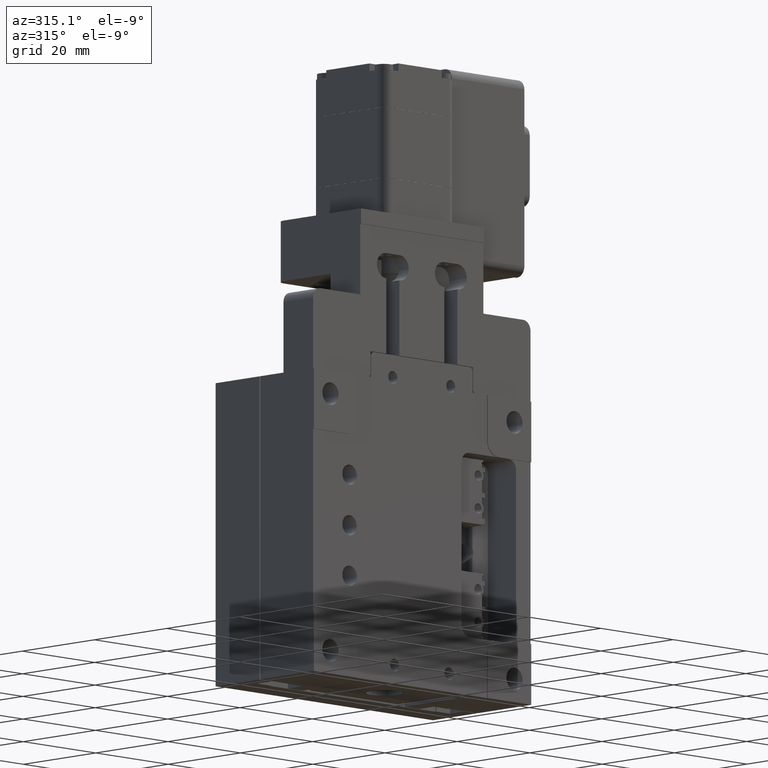
[diagram: clean part render]
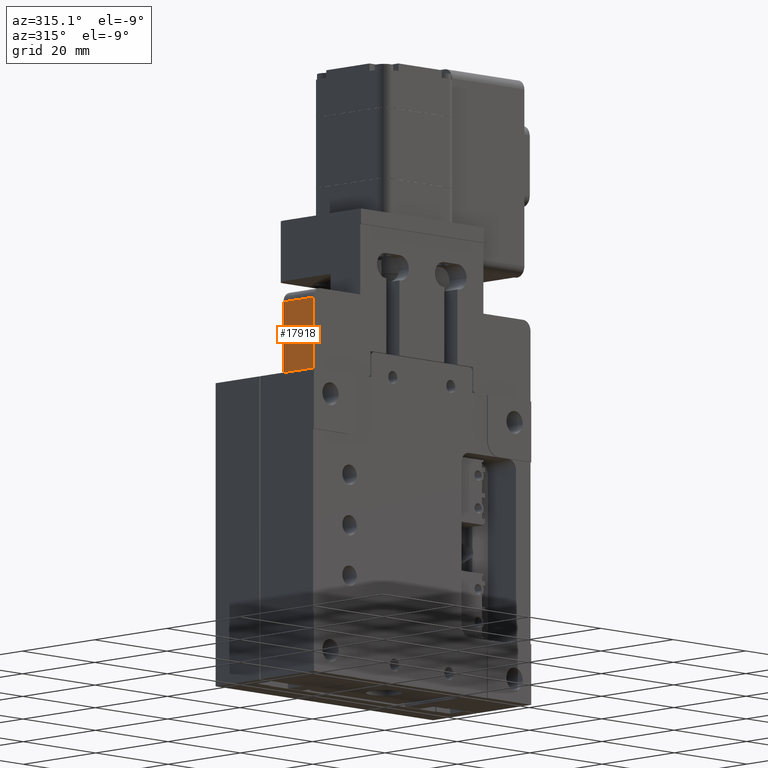
[diagram: same view with one face highlighted and labeled with its STEP entity id]
A machine part, auxiliary view. The second image highlights one B-rep face of the part: STEP entity #17918.
In plain terms, the highlighted planar face has unit normal (-1, 0, 0).
Its self-contained STEP definition (entity closure, byte-faithful):
#521 = CARTESIAN_POINT ( 'NONE',  ( -32.59171959880752200, -12.89818754598601900, 92.50000000000000000 ) ) ;
#1343 = VECTOR ( 'NONE', #5810, 1000.000000000000000 ) ;
#2170 = EDGE_CURVE ( 'NONE', #22150, #16474, #5634, .T. ) ;
#2409 = CARTESIAN_POINT ( 'NONE',  ( -32.59171959880752200, -4.698187545986018100, 92.50000000000000000 ) ) ;
#2565 = DIRECTION ( 'NONE',  ( 0.0000000000000000000, 0.0000000000000000000, 1.000000000000000000 ) ) ;
#2603 = AXIS2_PLACEMENT_3D ( 'NONE', #2409, #19979, #2565 ) ;
#3171 = DIRECTION ( 'NONE',  ( -0.0000000000000000000, 1.000000000000000000, -0.0000000000000000000 ) ) ;
#3338 = CARTESIAN_POINT ( 'NONE',  ( -32.59171959880752200, -4.698187545986018100, 106.5000000000000100 ) ) ;
#4384 = LINE ( 'NONE', #21349, #1343 ) ;
#4859 = CARTESIAN_POINT ( 'NONE',  ( -32.59171959880752200, -4.698187545986018100, 92.50000000000000000 ) ) ;
#5541 = DIRECTION ( 'NONE',  ( 0.0000000000000000000, 0.0000000000000000000, 1.000000000000000000 ) ) ;
#5634 = LINE ( 'NONE', #521, #22520 ) ;
#5749 = ORIENTED_EDGE ( 'NONE', *, *, #20749, .F. ) ;
#5810 = DIRECTION ( 'NONE',  ( 0.0000000000000000000, 0.0000000000000000000, 1.000000000000000000 ) ) ;
#6000 = DIRECTION ( 'NONE',  ( 0.0000000000000000000, -1.000000000000000000, 0.0000000000000000000 ) ) ;
#7834 = VECTOR ( 'NONE', #3171, 1000.000000000000000 ) ;
#8435 = EDGE_CURVE ( 'NONE', #16474, #16302, #10589, .T. ) ;
#8888 = LINE ( 'NONE', #16448, #20806 ) ;
#9498 = PLANE ( 'NONE',  #2603 ) ;
#10589 = LINE ( 'NONE', #12049, #7834 ) ;
#12049 = CARTESIAN_POINT ( 'NONE',  ( -32.59171959880752200, -4.698187545986018100, 106.5000000000000100 ) ) ;
#12579 = ORIENTED_EDGE ( 'NONE', *, *, #8435, .T. ) ;
#14326 = ORIENTED_EDGE ( 'NONE', *, *, #18449, .T. ) ;
#16302 = VERTEX_POINT ( 'NONE', #3338 ) ;
#16448 = CARTESIAN_POINT ( 'NONE',  ( -32.59171959880752200, -4.698187545986018100, 92.50000000000000000 ) ) ;
#16474 = VERTEX_POINT ( 'NONE', #21986 ) ;
#16934 = FACE_OUTER_BOUND ( 'NONE', #21853, .T. ) ;
#17918 = ADVANCED_FACE ( 'NONE', ( #16934 ), #9498, .T. ) ;
#18449 = EDGE_CURVE ( 'NONE', #21849, #22150, #8888, .T. ) ;
#19979 = DIRECTION ( 'NONE',  ( -1.000000000000000000, 0.0000000000000000000, 0.0000000000000000000 ) ) ;
#20749 = EDGE_CURVE ( 'NONE', #21849, #16302, #4384, .T. ) ;
#20806 = VECTOR ( 'NONE', #6000, 1000.000000000000000 ) ;
#21150 = CARTESIAN_POINT ( 'NONE',  ( -32.59171959880752200, -12.89818754598601900, 92.50000000000000000 ) ) ;
#21349 = CARTESIAN_POINT ( 'NONE',  ( -32.59171959880752200, -4.698187545986018100, 92.50000000000000000 ) ) ;
#21849 = VERTEX_POINT ( 'NONE', #4859 ) ;
#21853 = EDGE_LOOP ( 'NONE', ( #22906, #12579, #5749, #14326 ) ) ;
#21986 = CARTESIAN_POINT ( 'NONE',  ( -32.59171959880752200, -12.89818754598601900, 106.5000000000000100 ) ) ;
#22150 = VERTEX_POINT ( 'NONE', #21150 ) ;
#22520 = VECTOR ( 'NONE', #5541, 1000.000000000000000 ) ;
#22906 = ORIENTED_EDGE ( 'NONE', *, *, #2170, .T. ) ;